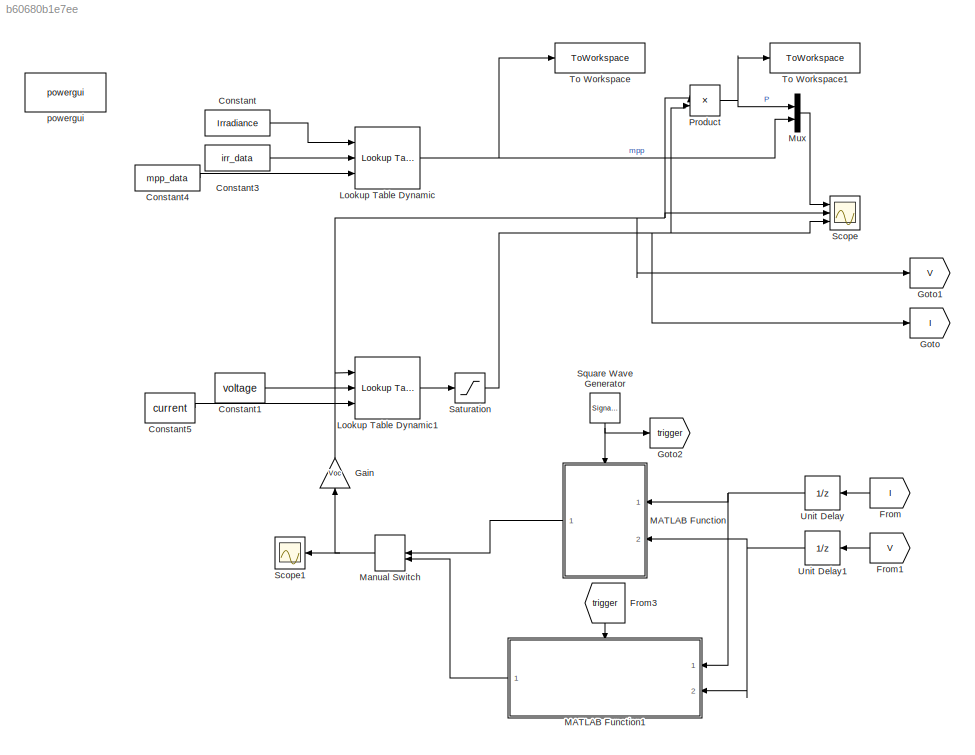
MODEL slx_b60680b1e7ee
KIND model
CONFIG AbsTol = auto
CONFIG EnableMultiTasking = off
CONFIG FixedStep = 5e-5
CONFIG MaxStep = max_time_step
CONFIG MinStep = auto
CONFIG RelTol = 1e-3
CONFIG SampleTimeConstraint = Unconstrained
CONFIG SolverName = ode23tb
CONFIG StartTime = 0.0
CONFIG StopTime = sim_time
BLOCK [Constant] Constant
  Value = Irradiance
BLOCK [Constant] Constant1
  Value = voltage
BLOCK [Constant] Constant3
  Value = irr_data
BLOCK [Constant] Constant4
  Value = mpp_data
BLOCK [Constant] Constant5
  Value = current
BLOCK [From] From
  GotoTag = I
BLOCK [From] From1
  GotoTag = V
  NameLocation = top
BLOCK [From] From3
  GotoTag = trigger
  NameLocation = left
BLOCK [Gain] Gain
  Gain = Voc
  NameLocation = right
BLOCK [Goto] Goto
  GotoTag = I
BLOCK [Goto] Goto1
  GotoTag = V
BLOCK [Goto] Goto2
  GotoTag = trigger
BLOCK [Reference] Lookup Table Dynamic  REF=simulink/Lookup
Tables/Lookup
Table
Dynamic
  Ports = [3, 1]
  SourceBlock = simulink/Lookup\nTables/Lookup\nTable\nDynamic
  SourceProductBaseCode = SL
  SourceType = Lookup Table Dynamic
BLOCK [Reference] Lookup Table Dynamic1  REF=simulink/Lookup
Tables/Lookup
Table
Dynamic
  Ports = [3, 1]
  SourceBlock = simulink/Lookup\nTables/Lookup\nTable\nDynamic
  SourceProductBaseCode = SL
  SourceType = Lookup Table Dynamic
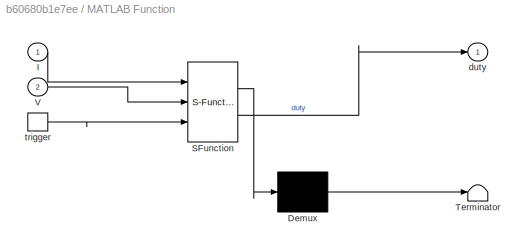
BLOCK [SubSystem] MATLAB Function
  ErrorFcn = Stateflow.Translate.translate
  PermitHierarchicalResolution = ExplicitOnly
  Ports = [2, 1, 0, 1]
  RequestExecContextInheritance = off
  SFBlockType = MATLAB Function
  TreatAsAtomicUnit = on
BLOCK [Demux] MATLAB Function/ Demux 
  Outputs = 1
  Ports = [1, 1]
BLOCK [S-Function] MATLAB Function/ SFunction 
  EnableBusSupport = on
  FunctionName = sf_sfun
  Parameters = duty_step
  PortCounts = [3 2]
  Ports = [3, 2]
  SFcnIsStateOwnerBlock = off
  SFunctionDeploymentMode = off
  Tag = Stateflow S-Function 2
BLOCK [Terminator] MATLAB Function/ Terminator 
BLOCK [Inport] MATLAB Function/I
BLOCK [Inport] MATLAB Function/V
  Port = 2
BLOCK [Outport] MATLAB Function/duty
BLOCK [TriggerPort] MATLAB Function/trigger
  Ports = [0, 1]
  ShowOutputPort = on
  StatesWhenEnabling = held
  VariantControl = (inherit)
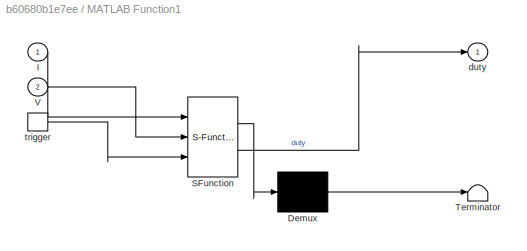
BLOCK [SubSystem] MATLAB Function1
  ErrorFcn = Stateflow.Translate.translate
  PermitHierarchicalResolution = ExplicitOnly
  Ports = [2, 1, 0, 1]
  RequestExecContextInheritance = off
  SFBlockType = MATLAB Function
  TreatAsAtomicUnit = on
BLOCK [Demux] MATLAB Function1/ Demux 
  Outputs = 1
  Ports = [1, 1]
BLOCK [S-Function] MATLAB Function1/ SFunction 
  EnableBusSupport = on
  FunctionName = sf_sfun
  Parameters = Isc,Voc,actions,alpha,deg_threshold,exploration_factor_init,gamma,n_I,n_V,wn,wp
  PortCounts = [3 2]
  Ports = [3, 2]
  SFcnIsStateOwnerBlock = off
  SFunctionDeploymentMode = off
  Tag = Stateflow S-Function 3
BLOCK [Terminator] MATLAB Function1/ Terminator 
BLOCK [Inport] MATLAB Function1/I
BLOCK [Inport] MATLAB Function1/V
  Port = 2
BLOCK [Outport] MATLAB Function1/duty
BLOCK [TriggerPort] MATLAB Function1/trigger
  Ports = [0, 1]
  ShowOutputPort = on
  StatesWhenEnabling = held
  VariantControl = (inherit)
BLOCK [ManualSwitch] Manual Switch
BLOCK [Mux] Mux
  DisplayOption = bar
  Inputs = 2
  Ports = [2, 1]
BLOCK [Product] Product
  Ports = [2, 1]
BLOCK [Saturate] Saturation
  LowerLimit = 0
  UpperLimit = Isc
BLOCK [Scope] Scope
  Floating = off
  NumInputPorts = 3
  Ports = [3]
  ScopeSpecificationString = Simulink.scopes.TimeScopeBlockCfg('CurrentConfiguration', extmgr.ConfigurationSet(extmgr.Configuration('Core','General UI',true),extmgr.Configuration('Core','Source UI',true),extmgr.Configuration('Sources','WiredSimulink',true),extmgr.Configuration('Visuals','Time Domain',true,'SerializedDisplays',{struct('MinYLimReal','-21.88592','MaxYLimReal','196.97325','YLabelReal','','MinYLimMag','0.00000','M...<+2905ch>
BLOCK [Scope] Scope1
  Floating = off
  NumInputPorts = 1
  Ports = [1]
  ScopeSpecificationString = Simulink.scopes.TimeScopeBlockCfg('CurrentConfiguration', extmgr.ConfigurationSet(extmgr.Configuration('Core','General UI',true),extmgr.Configuration('Core','Source UI',true),extmgr.Configuration('Sources','WiredSimulink',true,'DataLoggingVariableName','ScopeData1'),extmgr.Configuration('Visuals','Time Domain',true,'SerializedDisplays',{struct('MinYLimReal','-0.10781','MaxYLimReal','0.97031','YLab...<+1372ch>
BLOCK [SignalGenerator] Square Wave Generator
  Frequency = 1/Ts
  NameLocation = left
  Ports = [0, 1]
  WaveForm = square
BLOCK [ToWorkspace] To Workspace
  FixptAsFi = on
  MaxDataPoints = inf
  Ports = [1]
  SampleTime = -1
  SaveFormat = Timeseries
  VariableName = mpp
BLOCK [ToWorkspace] To Workspace1
  FixptAsFi = on
  MaxDataPoints = inf
  Ports = [1]
  SampleTime = -1
  SaveFormat = Timeseries
  VariableName = power
BLOCK [UnitDelay] Unit Delay
  HasFrameUpgradeWarning = on
  NameLocation = top
  SampleTime = -1
BLOCK [UnitDelay] Unit Delay1
  HasFrameUpgradeWarning = on
  NameLocation = top
  SampleTime = -1
BLOCK [Reference] powergui  REF=spspowerguiLib/powergui
  Ports = []
  Priority = 1
  SourceBlock = spspowerguiLib/powergui
  SourceProductBaseCode = PS
  SourceType = PSB option menu block
LINE Constant1:1 -> Lookup Table Dynamic1:2
LINE Constant3:1 -> Lookup Table Dynamic:2
LINE Constant4:1 -> Lookup Table Dynamic:3
LINE Constant5:1 -> Lookup Table Dynamic1:3
LINE Constant:1 -> Lookup Table Dynamic:1
LINE From1:1 -> Unit Delay1:1
LINE From3:1 -> MATLAB Function1:trigger
LINE From:1 -> Unit Delay:1
NET Gain:1 -> Goto1:1, Lookup Table Dynamic1:1, Product:1, Scope:2
LINE Lookup Table Dynamic1:1 -> Saturation:1
NET Lookup Table Dynamic:1 -> Mux:2, To Workspace:1
LINE MATLAB Function1:1 -> Manual Switch:2
LINE MATLAB Function:1 -> Manual Switch:1
NET Manual Switch:1 -> Gain:1, Scope1:1
LINE Mux:1 -> Scope:1
NET Product:1 -> Mux:1, To Workspace1:1
NET Saturation:1 -> Goto:1, Product:2, Scope:3
NET Square Wave Generator:1 -> Goto2:1, MATLAB Function:trigger
NET Unit Delay1:1 -> MATLAB Function1:2, MATLAB Function:2
NET Unit Delay:1 -> MATLAB Function1:1, MATLAB Function:1
note: NET lines group one-source signal fan-out (src -> all destinations, sorted); 1:1 wires keep LINE
CHART MATLAB Function states=1 transitions=1
  STATE_LABEL 'eML_blk_kernel()'
  STATE_LABEL 'SCRIPT:\n% @p_and_o - a function implementing the Perturb and Observe MPPT algorithm\nfunction duty = p_and_o_block(I, V, duty_step)\n\n    % make sure that function is included in the project path\n    duty = 0; % a requried init so that the program knows the size of the var\n    duty = p_and_o(I, V, duty_step);    \nend'
CHART MATLAB Function1 states=1 transitions=1
  STATE_LABEL 'eML_blk_kernel()'
  STATE_LABEL 'SCRIPT:\nfunction duty = q_table_block(I, V, Voc, Isc, deg_threshold, wp, wn, n_V, n_I, actions, alpha, gamma, exploration_factor_init)\n    \n    % make sure that function is included in the project path\n    \n    duty = 0; % a requried init so that the program knows the size of the var\n    duty = q_table(I, V, Voc, Isc, deg_threshold, wp, wn, n_V, n_I, actions, alpha, gamma, exploration_factor_init)...<+7ch>'
CHART  states=0 transitions=0
CHART  states=0 transitions=0
